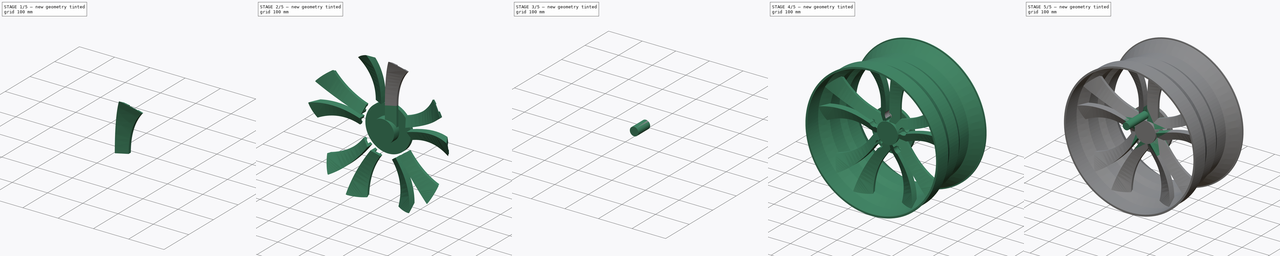
[diagram: build sequence overview — one tinted view per stage of 5, left to right]
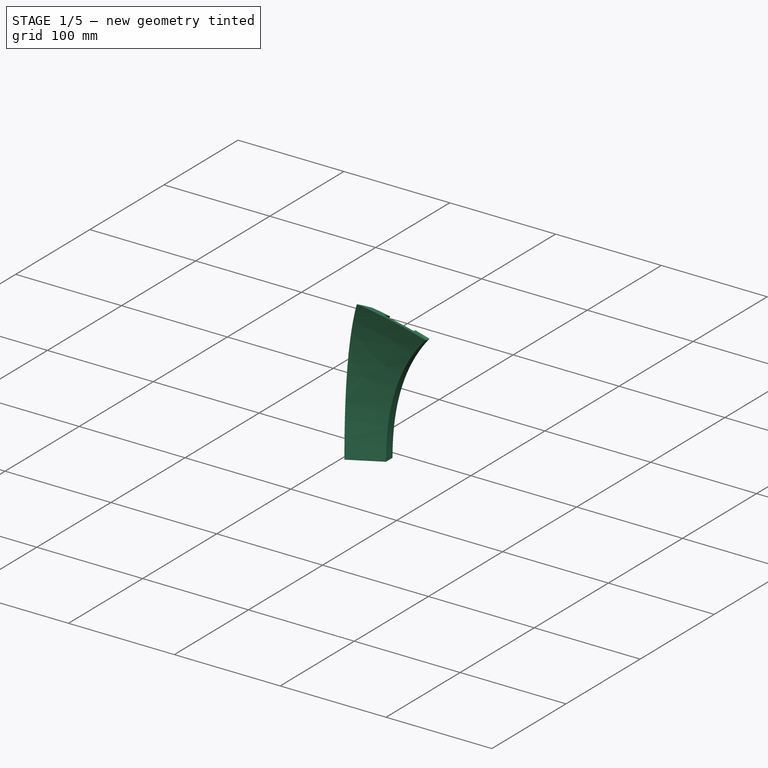
[diagram: stage 1 of 5 — iso view after this stage's code; geometry added in this stage tinted green]
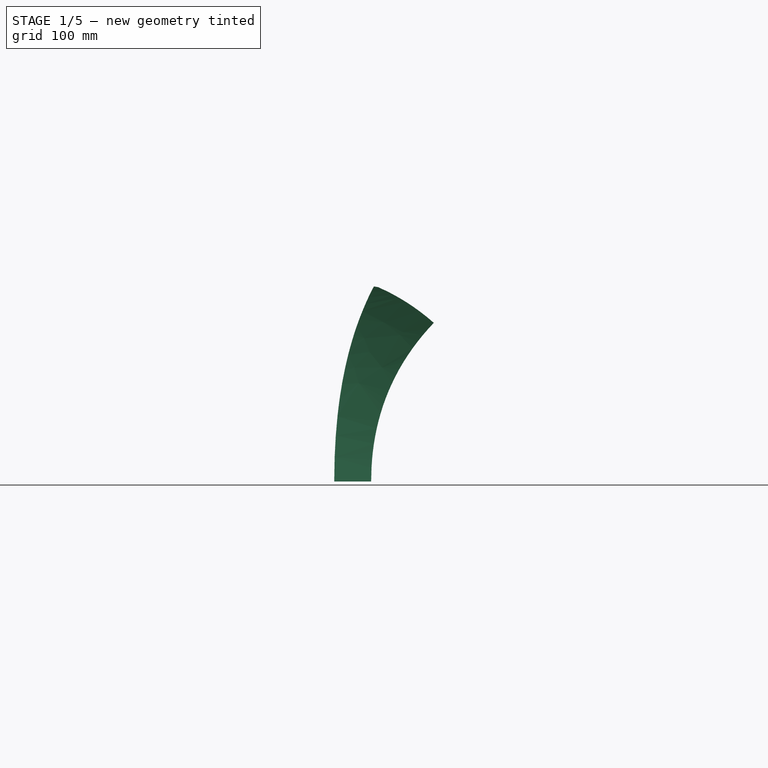
[diagram: stage 1 of 5 — front view after this stage's code; geometry added in this stage tinted green]
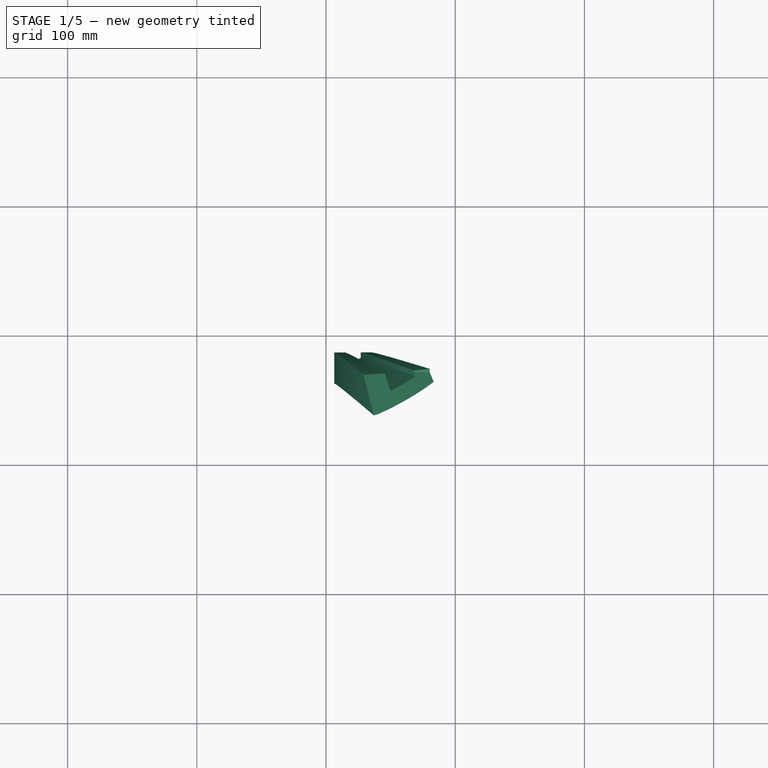
[diagram: stage 1 of 5 — top view after this stage's code; geometry added in this stage tinted green]
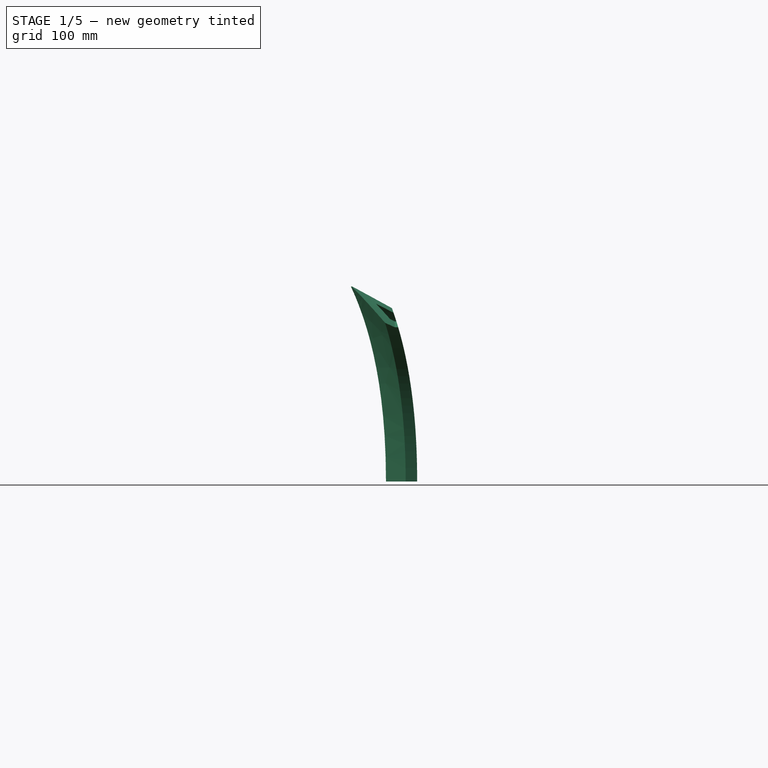
[diagram: stage 1 of 5 — right view after this stage's code; geometry added in this stage tinted green]
FCSTD DOCUMENT  (FreeCAD 0.19R21938 (Git))
Label: Wheel
License: All rights reserved
LicenseURL: http://en.wikipedia.org/wiki/All_rights_reserved
objects: Sketcher::SketchObject×16, Part::FeaturePython×7, Part::Feature×5, Part::Extrusion×4, Part::Revolution×3, PartDesign::Plane×3, Part::Cut×3, Part::MultiFuse×3, PartDesign::Body×2, Part::Mirroring×2, Part::Chamfer×2, PartDesign::Revolution×1, PartDesign::Pad×1, PartDesign::Mirrored×1, PartDesign::PolarPattern×1, PartDesign::MultiTransform×1
note: 51 computed .brp shape members not serialized (recipe doc carries the construction recipe); baked Part::Feature solids carry a one-line shape summary decoded from their .brp

FEATURE [Sketcher::SketchObject] Sketch
  sketch-geometry (6):
    g0: LineSegment StartX=0 StartY=0 StartZ=0 EndX=76.2 EndY=0 EndZ=0
    g1: LineSegment StartX=76.2 StartY=0 StartZ=0 EndX=76.2 EndY=-12.7 EndZ=0
    g2: LineSegment StartX=76.2 StartY=-12.7 StartZ=0 EndX=38.1 EndY=-12.7 EndZ=0
    g3: LineSegment StartX=38.1 StartY=-12.7 StartZ=0 EndX=38.1 EndY=-38.1 EndZ=0
    g4: LineSegment StartX=38.1 StartY=-38.1 StartZ=0 EndX=0 EndY=-38.1 EndZ=0
    g5: LineSegment StartX=0 StartY=-38.1 StartZ=0 EndX=0 EndY=0 EndZ=0
  constraints (17):
    c: PointOnObject(g0,g-1)
    c: Coincident(g0,g1)
    c: Vertical(g1)
    c: Coincident(g1,g2)
    c: Horizontal(g2)
    c: Coincident(g2,g3)
    c: Vertical(g3)
    c: Coincident(g3,g4)
    c: PointOnObject(g4,g-2)
    c: Horizontal(g4)
    c: Coincident(g4,g5)
    c: Coincident(g5,g-1)
    c: Coincident(g0,g5)
    c: DistanceY(g3,g3) = 25.4
    c: DistanceX(g4,g4) = 38.1
    c: DistanceY(g1,g1) = 12.7
    c: DistanceX(g0,g0) = 76.2
FEATURE [Part::Revolution] Revolve
  Angle = 360
  Axis = (0,1,0)
  Base = (0,0,0)
  FaceMakerClass = Part::FaceMakerBullseye
  Solid = true
  Source = -> Sketch
  Symmetric = false
FEATURE [Sketcher::SketchObject] Sketch001
  ExternalGeometry = -> [Revolve]
  sketch-geometry (4):
    g0: LineSegment StartX=6.35 StartY=-12.7 StartZ=0 EndX=34.925 EndY=-12.7 EndZ=0
    g1: LineSegment StartX=34.925 StartY=-12.7 StartZ=0 EndX=34.925 EndY=-21.59 EndZ=0
    g2: LineSegment StartX=34.925 StartY=-21.59 StartZ=0 EndX=6.35 EndY=-36.83 EndZ=0
    g3: LineSegment StartX=6.35 StartY=-36.83 StartZ=0 EndX=6.35 EndY=-12.7 EndZ=0
  constraints (12):
    c: Horizontal(g0)
    c: Coincident(g0,g1)
    c: Vertical(g1)
    c: Coincident(g1,g2)
    c: Coincident(g2,g3)
    c: Coincident(g3,g0)
    c: Vertical(g3)
    c: DistanceX(g-1,g0) = 6.35
    c: DistanceX(g0,g0) = 28.575
    c: Horizontal(g-3,g0)
    c: DistanceY(g1,g1) = 8.89
    c: DistanceY(g3,g3) = 24.13
FEATURE [Part::Extrusion] Extrude
  Base = -> Sketch001
  Dir = (0,0,1)
  DirMode = 2
  FaceMakerClass = Part::FaceMakerBullseye
  LengthFwd = 81
  LengthRev = 0
  Solid = true
  Symmetric = false
FEATURE [Sketcher::SketchObject] Sketch002
  Placement = pos=(0,0,254) rot=(0,0,1;0rad)
  sketch-geometry (4):
    g0: LineSegment StartX=50.8 StartY=-50.8 StartZ=0 EndX=152.4 EndY=-50.8 EndZ=0
    g1: LineSegment StartX=152.4 StartY=-50.8 StartZ=0 EndX=152.4 EndY=-63.5 EndZ=0
    g2: LineSegment StartX=152.4 StartY=-63.5 StartZ=0 EndX=50.8 EndY=-76.2 EndZ=0
    g3: LineSegment StartX=50.8 StartY=-76.2 StartZ=0 EndX=50.8 EndY=-50.8 EndZ=0
  constraints (12):
    c: Horizontal(g0)
    c: Coincident(g0,g1)
    c: Vertical(g1)
    c: Coincident(g1,g2)
    c: Coincident(g2,g3)
    c: Coincident(g3,g0)
    c: Vertical(g3)
    c: DistanceX(g0,g0) = 101.6
    c: DistanceY(g1,g1) = 12.7
    c: DistanceY(g3,g3) = 25.4
    c: DistanceX(g-1,g0) = 50.8
    c: DistanceY(g0,g-1) = 50.8
FEATURE [Sketcher::SketchObject] Sketch003
  ExternalGeometry = -> [Extrude]
  MapMode = 5
  Placement = pos=(0,-12.7,0) rot=(0,0.707107,0.707107;3.14159rad)
  Support = -> [Extrude]
  sketch-geometry (2):
    g0: LineSegment StartX=-34.925 StartY=81 StartZ=0 EndX=-34.925 EndY=193 EndZ=0
    g1: LineSegment StartX=-6.35 StartY=81 StartZ=0 EndX=-6.35 EndY=193 EndZ=0
  constraints (6):
    c: Coincident(g0,g-3)
    c: Vertical(g0)
    c: Coincident(g1,g-3)
    c: Vertical(g1)
    c: Equal(g0,g1)
    c: DistanceY(g0,g0) = 112
FEATURE [Sketcher::SketchObject] Sketch004
  ExternalGeometry = -> [Extrude,Sketch003]
  MapMode = 5
  Placement = pos=(6.35,0,0) rot=(0.57735,-0.57735,-0.57735;2.0944rad)
  Support = -> [Extrude]
  sketch-geometry (1):
    g0: LineSegment StartX=36.83 StartY=81 StartZ=0 EndX=36.83 EndY=193 EndZ=0
  constraints (3):
    c: Coincident(g0,g-3)
    c: Vertical(g0)
    c: Equal(g0,g-4)
FEATURE [PartDesign::Plane] DatumPlane
  Length = 247.861
  MapMode = 13
  Placement = pos=(21.1667,-25.4,176) rot=(0.253062,0.684091,0.684091;2.64588rad)
  ResizeMode = 0
  Support = -> [Sketch002,Sketch003]
  Width = 326.309
FEATURE [Sketcher::SketchObject] Sketch005
  ExternalGeometry = -> [Sketch003,Sketch002]
  MapMode = 5
  Placement = pos=(21.1667,-25.4,176) rot=(0.253062,0.684091,0.684091;2.64588rad)
  Support = -> [DatumPlane]
  sketch-geometry (6):
    g0: Circle [constr] CenterX=19.5147 CenterY=-95 CenterZ=0 NormalX=0 NormalY=0 NormalZ=1 AngleXU=0 Radius=20
    g1: Circle [constr] CenterX=19.557 CenterY=16.2476 CenterZ=0 NormalX=0 NormalY=0 NormalZ=1 AngleXU=0 Radius=20
    g2: Circle [constr] CenterX=-38.9699 CenterY=77.9796 CenterZ=0 NormalX=0 NormalY=0 NormalZ=1 AngleXU=0 Radius=20
    g3: BSplineCurve PolesCount=3 KnotsCount=2 Degree=2 IsPeriodic=0
    g4: GeomPoint [constr] X=19.5147 Y=-95 Z=0
    g5: GeomPoint [constr] X=-38.9699 Y=77.9796 Z=0
  constraints (9):
    c: Coincident(g3,g-3)
    c: Radius(g0) = 20
    c: Equal(g0,g1)
    c: Equal(g0,g2)
    c: InternalAlignment(g0,g3)
    c: InternalAlignment(g1,g3)
    c: InternalAlignment(g2,g3)
    c: InternalAlignment(g4,g3)
    c: InternalAlignment(g5,g3)
FEATURE [PartDesign::Plane] DatumPlane001
  Length = 247.131
  MapMode = 13
  Placement = pos=(21.1667,-49.9533,176) rot=(0.258976,0.682983,0.682983;2.63478rad)
  ResizeMode = 0
  Support = -> [Sketch004,Sketch002]
  Width = 326.232
FEATURE [Sketcher::SketchObject] Sketch006
  ExternalGeometry = -> [Sketch004,Sketch002]
  MapMode = 5
  Placement = pos=(21.1667,-49.9533,176) rot=(0.258976,0.682983,0.682983;2.63478rad)
  Support = -> [DatumPlane001]
  sketch-geometry (6):
    g0: Circle [constr] CenterX=19.7928 CenterY=-95 CenterZ=0 NormalX=0 NormalY=0 NormalZ=1 AngleXU=0 Radius=20
    g1: Circle [constr] CenterX=19.7928 CenterY=17 CenterZ=0 NormalX=0 NormalY=0 NormalZ=1 AngleXU=0 Radius=20
    g2: Circle [constr] CenterX=-39.5856 CenterY=78 CenterZ=0 NormalX=0 NormalY=0 NormalZ=1 AngleXU=0 Radius=20
    g3: BSplineCurve PolesCount=3 KnotsCount=2 Degree=2 IsPeriodic=0
    g4: GeomPoint [constr] X=19.7928 Y=-95 Z=0
    g5: GeomPoint [constr] X=-39.5856 Y=78 Z=0
  constraints (11):
    c: Coincident(g3,g-3)
    c: Radius(g0) = 20
    c: Equal(g0,g1)
    c: Coincident(g1,g-4)
    c: Equal(g0,g2)
    c: Coincident(g3,g-5)
    c: InternalAlignment(g0,g3)
    c: InternalAlignment(g1,g3)
    c: InternalAlignment(g2,g3)
    c: InternalAlignment(g4,g3)
    c: InternalAlignment(g5,g3)
FEATURE [PartDesign::Plane] DatumPlane002
  Length = 247.208
  MapMode = 13
  Placement = pos=(74.0833,-25.4,176) rot=(0.111107,0.702729,0.702729;2.92029rad)
  ResizeMode = 0
  Support = -> [Sketch003,Sketch002]
  Width = 326.24
FEATURE [Sketcher::SketchObject] Sketch007
  ExternalGeometry = -> [Sketch003,Sketch002]
  MapMode = 5
  Placement = pos=(74.0833,-25.4,176) rot=(0.111107,0.702729,0.702729;2.92029rad)
  Support = -> [DatumPlane002]
  sketch-geometry (6):
    g0: Circle [constr] CenterX=41.1663 CenterY=-95 CenterZ=0 NormalX=0 NormalY=0 NormalZ=1 AngleXU=0 Radius=20
    g1: Circle [constr] CenterX=41.1663 CenterY=17 CenterZ=0 NormalX=0 NormalY=0 NormalZ=1 AngleXU=0 Radius=20
    g2: Circle [constr] CenterX=-82.3326 CenterY=78 CenterZ=0 NormalX=0 NormalY=0 NormalZ=1 AngleXU=0 Radius=20
    g3: BSplineCurve PolesCount=3 KnotsCount=2 Degree=2 IsPeriodic=0
    g4: GeomPoint [constr] X=41.1663 Y=-95 Z=0
    g5: GeomPoint [constr] X=-82.3326 Y=78 Z=0
  constraints (11):
    c: Coincident(g3,g-3)
    c: Radius(g0) = 20
    c: Equal(g0,g1)
    c: Coincident(g1,g-4)
    c: Equal(g0,g2)
    c: Coincident(g3,g-5)
    c: InternalAlignment(g0,g3)
    c: InternalAlignment(g1,g3)
    c: InternalAlignment(g2,g3)
    c: InternalAlignment(g4,g3)
    c: InternalAlignment(g5,g3)
FEATURE [Sketcher::SketchObject] Sketch008
  ExternalGeometry = -> [Sketch003,Sketch004,Extrude]
  MapMode = 5
  Placement = pos=(0,0,81) rot=(0,0,1;0rad)
  Support = -> [Extrude]
  sketch-geometry (9):
    g0: LineSegment StartX=6.35 StartY=-12.7 StartZ=0 EndX=14.35 EndY=-12.7 EndZ=0
    g1: LineSegment StartX=14.35 StartY=-12.7 StartZ=0 EndX=14.35 EndY=-23.4967 EndZ=0
    g2: LineSegment StartX=14.35 StartY=-23.4967 StartZ=0 EndX=26.925 EndY=-16.79 EndZ=0
    g3: LineSegment StartX=26.925 StartY=-16.79 StartZ=0 EndX=26.925 EndY=-12.7 EndZ=0
    g4: LineSegment StartX=26.925 StartY=-12.7 StartZ=0 EndX=34.925 EndY=-12.7 EndZ=0
    g5: LineSegment StartX=34.925 StartY=-12.7 StartZ=0 EndX=34.925 EndY=-21.59 EndZ=0
    g6: LineSegment StartX=34.925 StartY=-21.59 StartZ=0 EndX=6.35 EndY=-36.83 EndZ=0
    g7: LineSegment StartX=6.35 StartY=-36.83 StartZ=0 EndX=6.35 EndY=-12.7 EndZ=0
    g8: LineSegment [constr] StartX=14.35 StartY=-23.4967 StartZ=0 EndX=18.1147 EndY=-30.5555 EndZ=0
  constraints (23):
    c: Coincident(g0,g-4)
    c: Horizontal(g0)
    c: Coincident(g0,g1)
    c: Vertical(g1)
    c: Coincident(g1,g2)
    c: Coincident(g2,g3)
    c: Vertical(g3)
    c: Coincident(g3,g4)
    c: Coincident(g4,g-3)
    c: Horizontal(g4)
    c: Coincident(g4,g5)
    c: Coincident(g5,g-6)
    c: Coincident(g5,g6)
    c: Coincident(g6,g-5)
    c: Coincident(g6,g7)
    c: Coincident(g7,g0)
    c: DistanceX(g0,g0) = 8
    c: Parallel(g2,g6)
    c: Coincident(g8,g1)
    c: PointOnObject(g8,g6)
    c: Equal(g0,g4)
    c: Equal(g0,g8)
    c: Perpendicular(g6,g8)
FEATURE [PartDesign::Body] Body
  Group = -> [Sketch003,Sketch004,Sketch002,DatumPlane,Sketch005,DatumPlane001,Sketch006,DatumPlane002,Sketch007,Sketch008]
  Origin = -> Origin
FEATURE [Part::FeaturePython] CurvedArray  # WARN: FeaturePython — macro-defined, semantics opaque (R4)
  Axis = (0,0,1)
  Base = -> Sketch008
  Distribution = 0
  DistributionReverse = false
  Hullcurves = -> [Sketch007,Sketch006,Sketch005]
  Items = 10
  OffsetEnd = 0
  OffsetStart = 0
  Solid = true
  Surface = false
  Twist = 0
FEATURE [Sketcher::SketchObject] Sketch009
  Placement = pos=(0,0,0) rot=(0.57735,0.57735,0.57735;2.0944rad)
  sketch-geometry (12):
    g0: LineSegment [constr] StartX=-120 StartY=241.3 StartZ=0 EndX=134 EndY=241.3 EndZ=0
    g1: LineSegment StartX=-120 StartY=241.3 StartZ=0 EndX=-120 EndY=234.95 EndZ=0
    g2: LineSegment StartX=-120 StartY=234.95 StartZ=0 EndX=-63 EndY=234.95 EndZ=0
    g3: LineSegment StartX=-63 StartY=234.95 StartZ=0 EndX=-30 EndY=215.897 EndZ=0
    g4: LineSegment StartX=-30 StartY=215.897 StartZ=0 EndX=20 EndY=215.897 EndZ=0
    g5: LineSegment StartX=20 StartY=215.897 StartZ=0 EndX=40 EndY=204.35 EndZ=0
    g6: LineSegment StartX=40 StartY=204.35 StartZ=0 EndX=90 EndY=204.35 EndZ=0
    g7: LineSegment StartX=90 StartY=204.35 StartZ=0 EndX=134 EndY=234.95 EndZ=0
    g8: LineSegment StartX=134 StartY=234.95 StartZ=0 EndX=134 EndY=241.3 EndZ=0
    g9: LineSegment StartX=-120 StartY=241.3 StartZ=0 EndX=-120 EndY=441.3 EndZ=0
    g10: LineSegment StartX=-120 StartY=441.3 StartZ=0 EndX=134 EndY=441.3 EndZ=0
    g11: LineSegment StartX=134 StartY=441.3 StartZ=0 EndX=134 EndY=241.3 EndZ=0
  constraints (35):
    c: Horizontal(g0)
    c: DistanceY(g-1,g0) = 241.3
    c: DistanceX(g0,g0) = 254
    c: DistanceX(g0,g-1) = 120
    c: Coincident(g1,g0)
    c: Vertical(g1)
    c: Coincident(g1,g2)
    c: Horizontal(g2)
    c: Coincident(g2,g3)
    c: Coincident(g3,g4)
    c: Horizontal(g4)
    c: Coincident(g4,g5)
    c: Coincident(g5,g6)
    c: Horizontal(g6)
    c: Coincident(g6,g7)
    c: Coincident(g7,g8)
    c: Vertical(g8)
    c: DistanceY(g1,g1) = 6.35
    c: Angle(g2,g3) = 2.61799
    c: DistanceX(g2,g2) = 57
    c: DistanceX(g3,g-1) = 30
    c: DistanceX(g4,g4) = 50
    c: Angle(g4,g5) = 2.61799
    c: DistanceX(g6,g6) = 50
    c: Equal(g8,g1)
    c: Coincident(g8,g0)
    c: DistanceX(g-1,g5) = 40
    c: Coincident(g1,g9)
    c: Vertical(g9)
    c: Coincident(g9,g10)
    c: Horizontal(g10)
    c: Coincident(g10,g11)
    c: Coincident(g11,g8)
    c: Vertical(g11)
    c: DistanceY(g9,g9) = 200
FEATURE [Part::Revolution] Revolve001
  Angle = 360
  Axis = (0,1,0)
  Base = (0,0,0)
  FaceMakerClass = Part::FaceMakerBullseye
  Solid = true
  Source = -> Sketch009
  Symmetric = false
FEATURE [Part::Cut] Cut
  Base = -> CurvedArray
  Tool = -> Revolve001
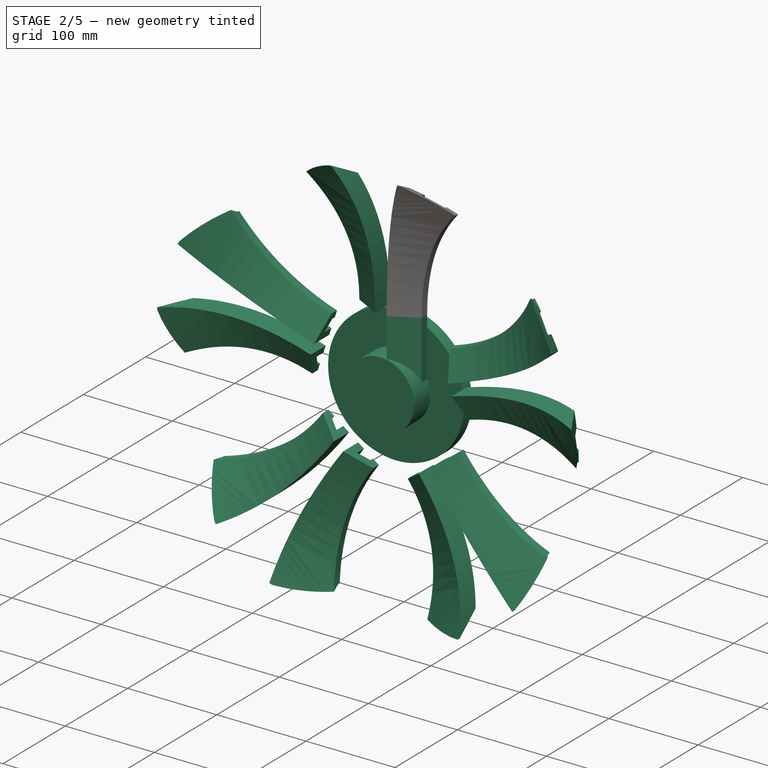
[diagram: stage 2 of 5 — iso view after this stage's code; geometry added in this stage tinted green]
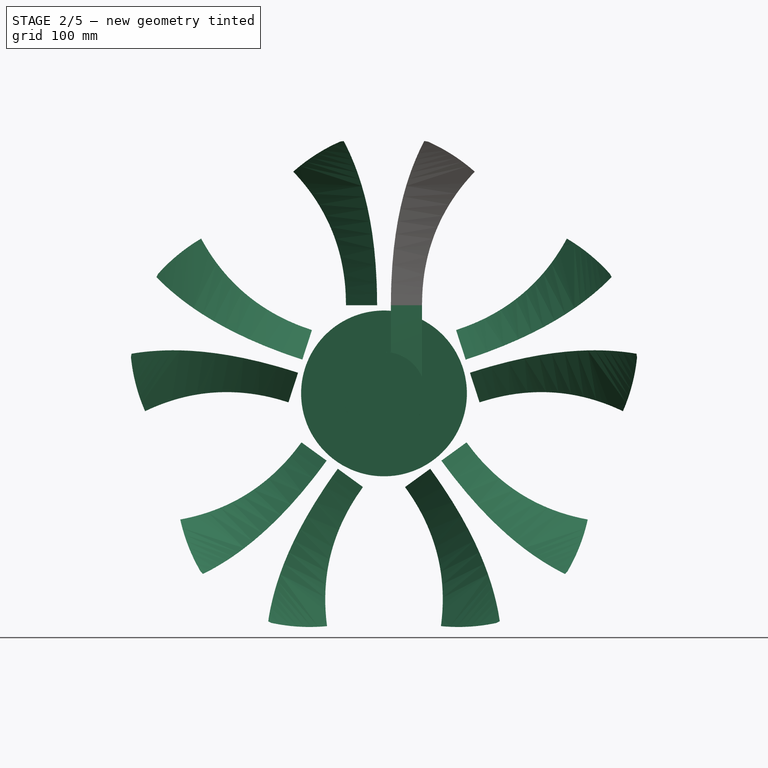
[diagram: stage 2 of 5 — front view after this stage's code; geometry added in this stage tinted green]
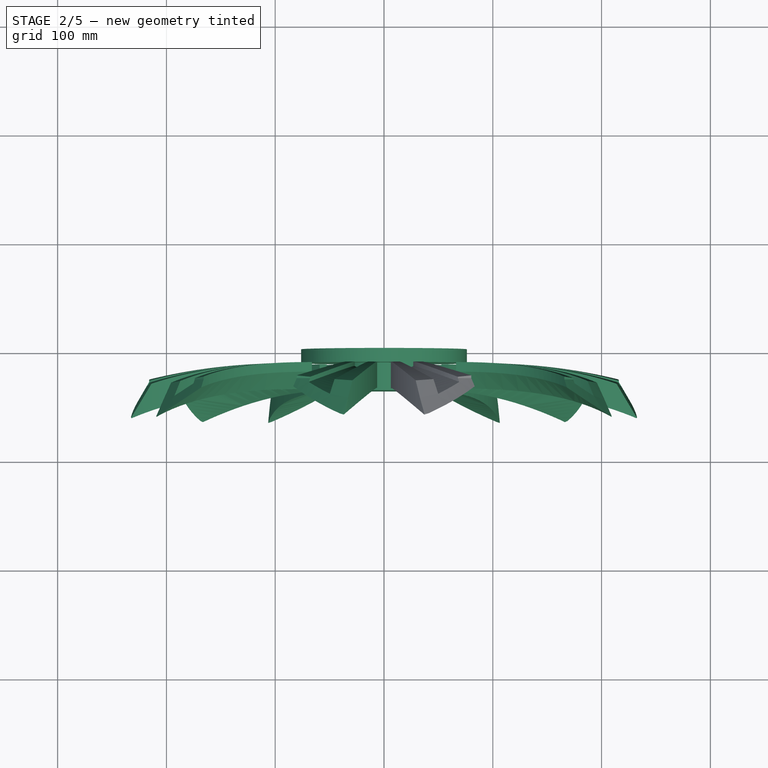
[diagram: stage 2 of 5 — top view after this stage's code; geometry added in this stage tinted green]
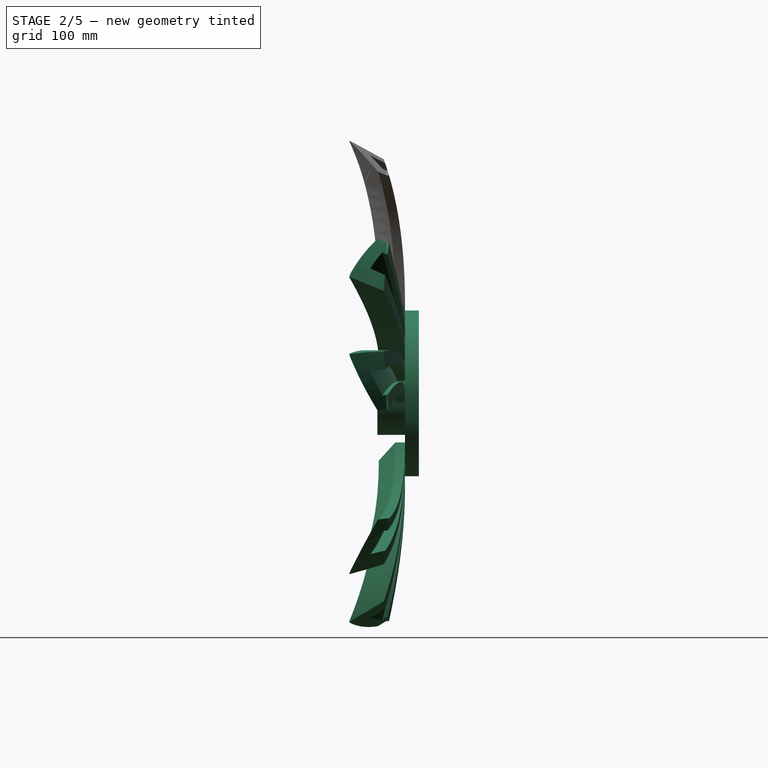
[diagram: stage 2 of 5 — right view after this stage's code; geometry added in this stage tinted green]
FEATURE [Part::Mirroring] Part__Mirroring001  label="Cut (Mirror #2)"
  Base = (0,0,0)
  Normal = (1,0,0)
  Source = -> Cut
FEATURE [Part::FeaturePython] Array002  # Draft array (typed FeaturePython)
  Angle = 360
  ArrayType = 1
  Axis = (0,1,0)
  Base = -> Cut
  Center = (0,0,0)
  Count = 5
  ExpandArray = false
  Fuse = false
  IntervalAxis = (0,0,0)
  IntervalX = (50,0,0)
  IntervalY = (0,50,0)
  IntervalZ = (0,0,50)
  NumberCircles = 3
  NumberPolar = 5
  NumberX = 2
  NumberY = 2
  NumberZ = 1
  PlacementList = 5 placements: [(0,0,0),(0,0,0),(0,0,0),(0,0,0),(0,0,0)]
  RadialDistance = 50
  ScaleList = (5) [(1,1,1),(1,1,1),(1,1,1),(1,1,1),(1,1,1)]
  Symmetry = 1
  TangentialDistance = 25
FEATURE [Part::FeaturePython] Array003  # Draft array (typed FeaturePython)
  Angle = 360
  ArrayType = 1
  Axis = (0,1,0)
  Base = -> Part__Mirroring001
  Center = (0,0,0)
  Count = 5
  ExpandArray = false
  Fuse = false
  IntervalAxis = (0,0,0)
  IntervalX = (50,0,0)
  IntervalY = (0,50,0)
  IntervalZ = (0,0,50)
  NumberCircles = 3
  NumberPolar = 5
  NumberX = 2
  NumberY = 2
  NumberZ = 1
  PlacementList = 5 placements: [(0,0,0),(0,0,0),(0,0,0),(0,0,0),(0,0,0)]
  RadialDistance = 50
  ScaleList = (5) [(1,1,1),(1,1,1),(1,1,1),(1,1,1),(1,1,1)]
  Symmetry = 1
  TangentialDistance = 25
FEATURE [Sketcher::SketchObject] Sketch012
  sketch-geometry (6):
    g0: LineSegment StartX=0 StartY=0 StartZ=0 EndX=76.2 EndY=0 EndZ=0
    g1: LineSegment StartX=76.2 StartY=0 StartZ=0 EndX=76.2 EndY=-12.7 EndZ=0
    g2: LineSegment StartX=76.2 StartY=-12.7 StartZ=0 EndX=38.1 EndY=-12.7 EndZ=0
    g3: LineSegment StartX=38.1 StartY=-12.7 StartZ=0 EndX=38.1 EndY=-38.1 EndZ=0
    g4: LineSegment StartX=38.1 StartY=-38.1 StartZ=0 EndX=0 EndY=-38.1 EndZ=0
    g5: LineSegment StartX=0 StartY=-38.1 StartZ=0 EndX=0 EndY=0 EndZ=0
  constraints (17):
    c: PointOnObject(g0,g-1)
    c: Coincident(g0,g1)
    c: Vertical(g1)
    c: Coincident(g1,g2)
    c: Horizontal(g2)
    c: Coincident(g2,g3)
    c: Vertical(g3)
    c: Coincident(g3,g4)
    c: PointOnObject(g4,g-2)
    c: Horizontal(g4)
    c: Coincident(g4,g5)
    c: Coincident(g5,g-1)
    c: Coincident(g0,g5)
    c: DistanceY(g3,g3) = 25.4
    c: DistanceX(g4,g4) = 38.1
    c: DistanceY(g1,g1) = 12.7
    c: DistanceX(g0,g0) = 76.2
FEATURE [PartDesign::Revolution] Revolution
  Angle = 360
  Axis = (0,1,0)
  Base = (0,0,0)
  Profile = -> Sketch012
  ReferenceAxis = -> Sketch012 [V_Axis]
  Reversed = true
FEATURE [Sketcher::SketchObject] Sketch013
  ExternalGeometry = -> [Revolve]
  sketch-geometry (4):
    g0: LineSegment StartX=6.35 StartY=-12.7 StartZ=0 EndX=34.925 EndY=-12.7 EndZ=0
    g1: LineSegment StartX=34.925 StartY=-12.7 StartZ=0 EndX=34.925 EndY=-21.59 EndZ=0
    g2: LineSegment StartX=34.925 StartY=-21.59 StartZ=0 EndX=6.35 EndY=-36.83 EndZ=0
    g3: LineSegment StartX=6.35 StartY=-36.83 StartZ=0 EndX=6.35 EndY=-12.7 EndZ=0
  constraints (12):
    c: Horizontal(g0)
    c: Coincident(g0,g1)
    c: Vertical(g1)
    c: Coincident(g1,g2)
    c: Coincident(g2,g3)
    c: Coincident(g3,g0)
    c: Vertical(g3)
    c: DistanceX(g-1,g0) = 6.35
    c: DistanceX(g0,g0) = 28.575
    c: Horizontal(g-3,g0)
    c: DistanceY(g1,g1) = 8.89
    c: DistanceY(g3,g3) = 24.13
FEATURE [PartDesign::Pad] Pad
  BaseFeature = -> Revolution
  Length = 81
  Length2 = 100
  Profile = -> Sketch013
  Type = 0
FEATURE [PartDesign::Body] Body001  label="CenterSpoke"
  Group = -> [Sketch012,Revolution,Sketch013,Pad,MultiTransform,Mirrored001,PolarPattern]
  Origin = -> Origin001
  Tip = -> MultiTransform
FEATURE [Part::MultiFuse] Fusion
  Shapes = -> [Array002,Array003]
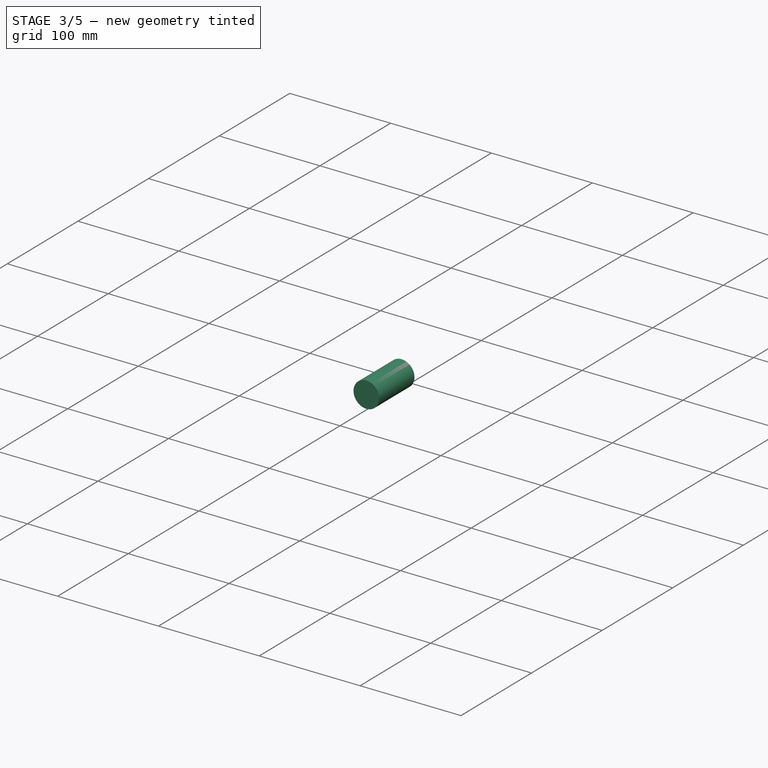
[diagram: stage 3 of 5 — iso view after this stage's code; geometry added in this stage tinted green]
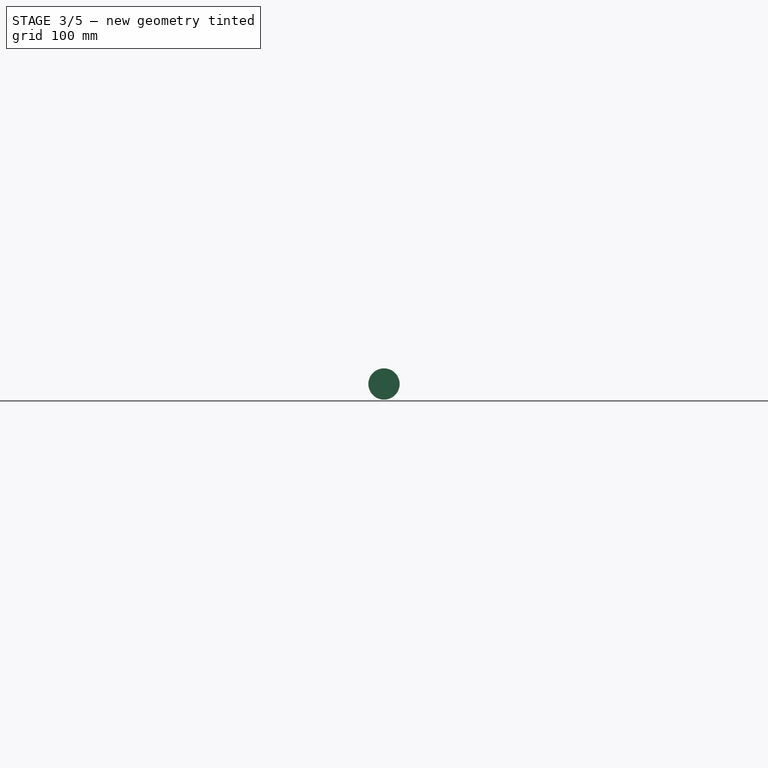
[diagram: stage 3 of 5 — front view after this stage's code; geometry added in this stage tinted green]
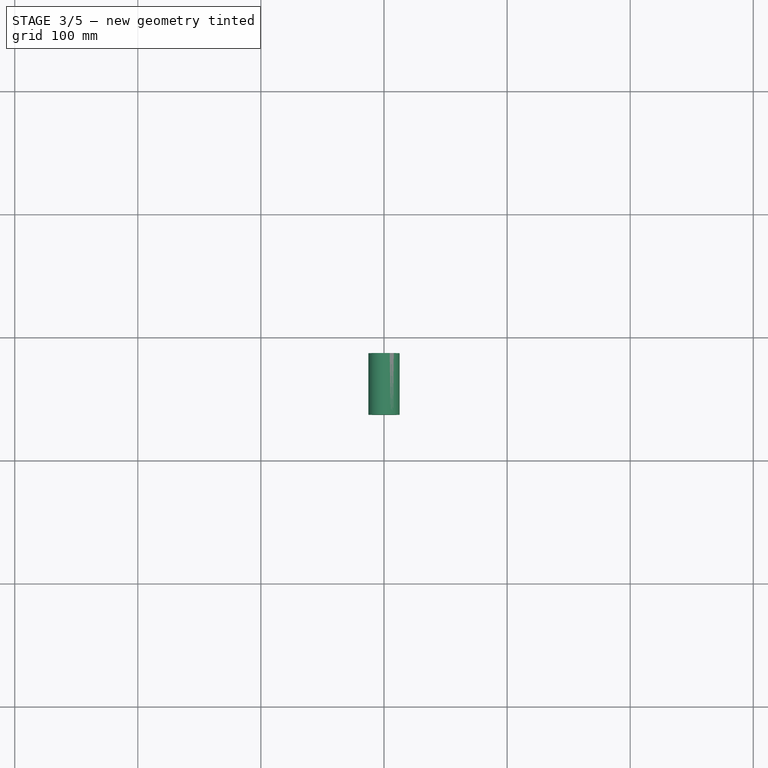
[diagram: stage 3 of 5 — top view after this stage's code; geometry added in this stage tinted green]
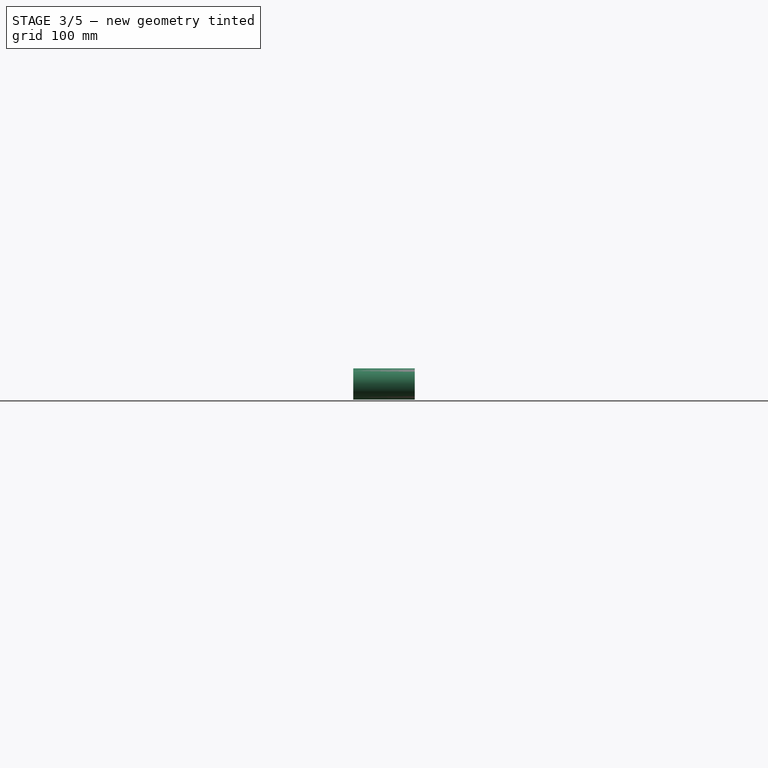
[diagram: stage 3 of 5 — right view after this stage's code; geometry added in this stage tinted green]
FEATURE [Sketcher::SketchObject] Sketch010
  ExternalGeometry = -> [Sketch009]
  Placement = pos=(0,0,0) rot=(0.57735,0.57735,0.57735;2.0944rad)
  sketch-geometry (23):
    g0: LineSegment StartX=-120 StartY=241.3 StartZ=0 EndX=-116.875 EndY=241.3 EndZ=0
    g1: LineSegment StartX=-116.875 StartY=241.3 StartZ=0 EndX=-116.875 EndY=238.175 EndZ=0
    g2: LineSegment StartX=-116.875 StartY=238.175 StartZ=0 EndX=-60.9005 EndY=238.175 EndZ=0
    g3: LineSegment StartX=-60.9005 StartY=238.175 StartZ=0 EndX=-28.9704 EndY=219.74 EndZ=0
    g4: LineSegment StartX=-28.9704 StartY=219.74 StartZ=0 EndX=21.0296 EndY=219.74 EndZ=0
    g5: LineSegment StartX=21.0296 StartY=219.74 StartZ=0 EndX=41.0296 EndY=208.193 EndZ=0
    g6: LineSegment StartX=41.0296 StartY=208.193 StartZ=0 EndX=88.7952 EndY=208.193 EndZ=0
    g7: LineSegment StartX=88.7952 StartY=208.193 StartZ=0 EndX=130.875 EndY=237.457 EndZ=0
    g8: LineSegment StartX=130.875 StartY=237.457 StartZ=0 EndX=130.875 EndY=241.3 EndZ=0
    g9: LineSegment StartX=130.875 StartY=241.3 StartZ=0 EndX=134 EndY=241.3 EndZ=0
    g10: LineSegment [constr] StartX=130.875 StartY=237.457 StartZ=0 EndX=133.069 EndY=234.303 EndZ=0
    g11: LineSegment [constr] StartX=88.7952 StartY=208.193 StartZ=0 EndX=88.7952 EndY=204.35 EndZ=0
    g12: LineSegment [constr] StartX=41.0296 StartY=208.193 StartZ=0 EndX=39.1083 EndY=204.865 EndZ=0
    g13: LineSegment [constr] StartX=-28.9704 StartY=219.74 StartZ=0 EndX=-28.9704 EndY=215.897 EndZ=0
    g14: LineSegment [constr] StartX=-63 StartY=234.95 StartZ=0 EndX=-61.0787 EndY=238.278 EndZ=0
    g15: LineSegment StartX=-120 StartY=241.3 StartZ=0 EndX=-120 EndY=234.95 EndZ=0
    g16: LineSegment StartX=-63 StartY=234.95 StartZ=0 EndX=-120 EndY=234.95 EndZ=0
    g17: LineSegment StartX=-63 StartY=234.95 StartZ=0 EndX=-30 EndY=215.897 EndZ=0
    g18: LineSegment StartX=-30 StartY=215.897 StartZ=0 EndX=20 EndY=215.897 EndZ=0
    g19: LineSegment StartX=20 StartY=215.897 StartZ=0 EndX=40 EndY=204.35 EndZ=0
    g20: LineSegment StartX=40 StartY=204.35 StartZ=0 EndX=90 EndY=204.35 EndZ=0
    g21: LineSegment StartX=90 StartY=204.35 StartZ=0 EndX=134 EndY=234.95 EndZ=0
    g22: LineSegment StartX=134 StartY=234.95 StartZ=0 EndX=134 EndY=241.3 EndZ=0
  constraints (60):
    c: Coincident(g-10,g0)
    c: Horizontal(g0)
    c: Coincident(g0,g1)
    c: Vertical(g1)
    c: Coincident(g1,g2)
    c: Horizontal(g2)
    c: Coincident(g2,g3)
    c: Coincident(g3,g4)
    c: Horizontal(g4)
    c: Coincident(g4,g5)
    c: Coincident(g5,g6)
    c: Horizontal(g6)
    c: Coincident(g6,g7)
    c: Coincident(g7,g8)
    c: Coincident(g8,g9)
    c: Coincident(g9,g-3)
    c: DistanceX(g0,g0) = 3.125
    c: Equal(g1,g0)
    c: Parallel(g-8,g3)
    c: Parallel(g-6,g5)
    c: Parallel(g-4,g7)
    c: Vertical(g8)
    c: Horizontal(g9)
    c: Coincident(g10,g7)
    c: PointOnObject(g10,g-4)
    c: Perpendicular(g-4,g10)
    c: Equal(g9,g0)
    c: Equal(g8,g10)
    c: PointOnObject(g11,g-5)
    c: Vertical(g11)
    c: Equal(g10,g11)
    c: PointOnObject(g12,g-6)
    c: Perpendicular(g-6,g12)
    c: Equal(g12,g11)
    c: PointOnObject(g13,g-7)
    c: Vertical(g13)
    c: Equal(g13,g12)
    c: Coincident(g14,g-9)
    c: PointOnObject(g14,g3)
    c: Perpendicular(g3,g14)
    c: Equal(g14,g13)
    c: Coincident(g6,g11)
    c: Coincident(g13,g3)
    c: Coincident(g12,g5)
    c: Coincident(g15,g0)
    c: Coincident(g15,g-10)
    c: Coincident(g16,g14)
    c: Coincident(g16,g15)
    c: Coincident(g17,g16)
    c: Coincident(g17,g-8)
    c: Coincident(g18,g17)
    c: Coincident(g18,g-7)
    c: Coincident(g19,g18)
    c: Coincident(g19,g-6)
    c: Coincident(g20,g19)
    c: Coincident(g20,g-5)
    c: Coincident(g21,g20)
    c: Coincident(g21,g-4)
    c: Coincident(g22,g21)
    c: Coincident(g22,g9)
FEATURE [Part::Revolution] Revolve002
  Angle = 360
  Axis = (0,1,0)
  Base = (0,0,0)
  FaceMakerClass = Part::FaceMakerBullseye
  Solid = true
  Source = -> Sketch010
  Symmetric = false
FEATURE [PartDesign::Mirrored] Mirrored001
  MirrorPlane = -> Sketch013 [V_Axis]
FEATURE [PartDesign::PolarPattern] PolarPattern
  Angle = 360
  Axis = -> Sketch013 [V_Axis]
  Occurrences = 5
FEATURE [PartDesign::MultiTransform] MultiTransform
  BaseFeature = -> Pad
  Originals = -> [Pad]
  Transformations = -> [Mirrored001,PolarPattern]
FEATURE [Part::MultiFuse] Fusion001
  Shapes = -> [Body001,Fusion]
FEATURE [Part::MultiFuse] Fusion002
  Shapes = -> [Revolve002,Fusion001]
FEATURE [Sketcher::SketchObject] Sketch014
  MapMode = 5
  Placement = pos=(0,-12.7,0) rot=(1,0,0;1.5708rad)
  Support = -> [Fusion002]
  sketch-geometry (2):
    g0: Circle [constr] CenterX=0 CenterY=0 CenterZ=0 NormalX=0 NormalY=0 NormalZ=1 AngleXU=0 Radius=57.15
    g1: Circle CenterX=0 CenterY=57.15 CenterZ=0 NormalX=0 NormalY=0 NormalZ=1 AngleXU=0 Radius=12.7
  constraints (5):
    c: Coincident(g0,g-1)
    c: Radius(g0) = 57.15
    c: PointOnObject(g1,g-2)
    c: Radius(g1) = 12.7
    c: PointOnObject(g1,g0)
FEATURE [Part::Extrusion] Extrude002
  Base = -> Sketch014
  Dir = (0,-1,2e-16)
  DirMode = 2
  FaceMakerClass = Part::FaceMakerBullseye
  LengthFwd = 50
  LengthRev = 0
  Solid = true
  Symmetric = false
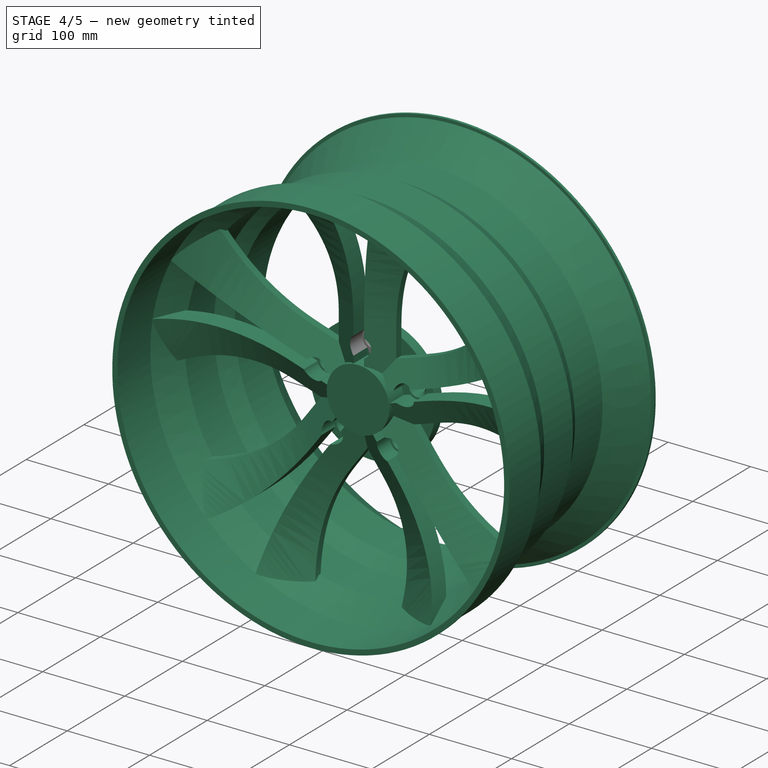
[diagram: stage 4 of 5 — iso view after this stage's code; geometry added in this stage tinted green]
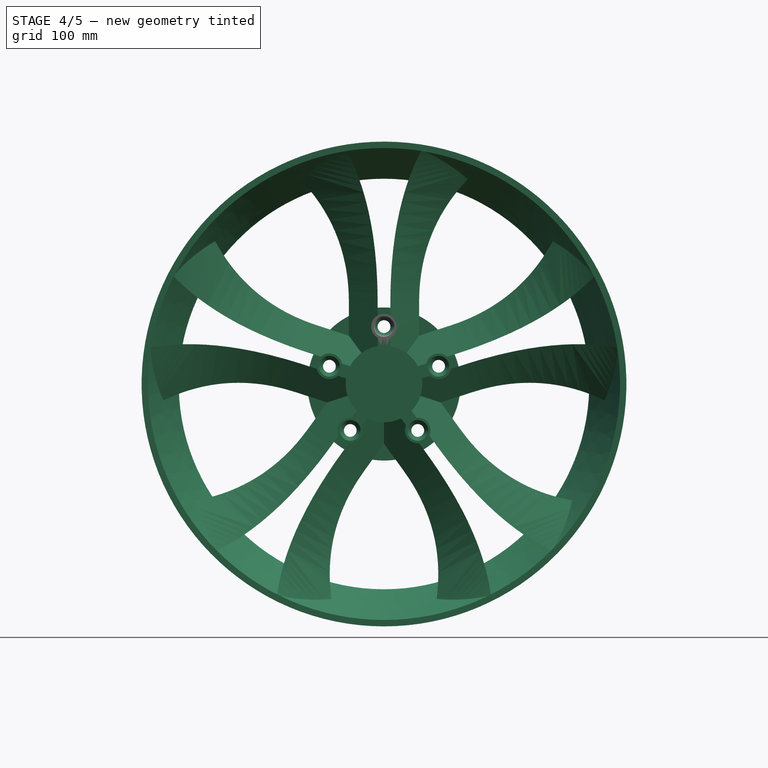
[diagram: stage 4 of 5 — front view after this stage's code; geometry added in this stage tinted green]
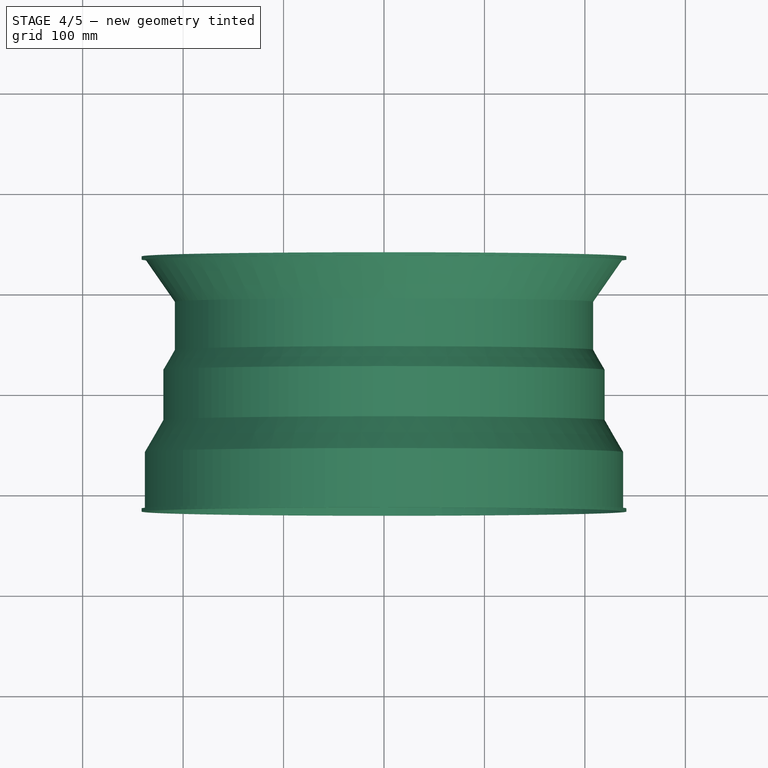
[diagram: stage 4 of 5 — top view after this stage's code; geometry added in this stage tinted green]
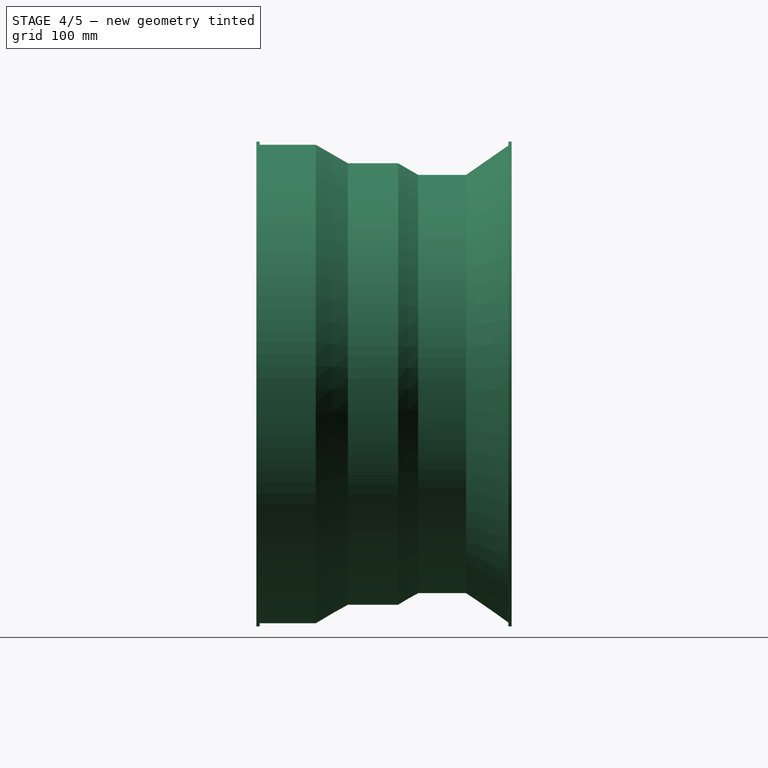
[diagram: stage 4 of 5 — right view after this stage's code; geometry added in this stage tinted green]
FEATURE [Part::FeaturePython] Array005  # Draft array (typed FeaturePython)
  Angle = 360
  ArrayType = 1
  Axis = (0,1,0)
  Base = -> Extrude002
  Center = (0,0,0)
  Count = 5
  ExpandArray = false
  Fuse = false
  IntervalAxis = (0,0,0)
  IntervalX = (50,0,0)
  IntervalY = (0,50,0)
  IntervalZ = (0,0,50)
  NumberCircles = 3
  NumberPolar = 5
  NumberX = 2
  NumberY = 2
  NumberZ = 1
  PlacementList = 5 placements: [(0,0,0),(0,0,0),(0,0,0),(0,0,0),(0,0,0)]
  RadialDistance = 50
  ScaleList = (5) [(1,1,1),(1,1,1),(1,1,1),(1,1,1),(1,1,1)]
  Symmetry = 1
  TangentialDistance = 25
FEATURE [Part::Cut] Cut001
  Base = -> Fusion002
  Tool = -> Array005
FEATURE [Sketcher::SketchObject] Sketch015
  ExternalGeometry = -> [Cut001]
  MapMode = 5
  Placement = pos=(0,-12.7,0) rot=(1,0,0;1.5708rad)
  Support = -> [Cut001]
  sketch-geometry (1):
    g0: Circle CenterX=0 CenterY=57.15 CenterZ=0 NormalX=0 NormalY=0 NormalZ=1 AngleXU=0 Radius=6.35
  constraints (2):
    c: Coincident(g0,g-3)
    c: Radius(g0) = 6.35
FEATURE [Part::Extrusion] Extrude003
  Base = -> Sketch015
  Dir = (0,-1,2e-16)
  DirMode = 2
  FaceMakerClass = Part::FaceMakerBullseye
  LengthFwd = 50
  LengthRev = 0
  Solid = true
  Symmetric = true
FEATURE [Part::FeaturePython] Array006  # Draft array (typed FeaturePython)
  Angle = 360
  ArrayType = 1
  Axis = (0,1,0)
  Base = -> Extrude003
  Center = (0,0,0)
  Count = 5
  ExpandArray = false
  Fuse = false
  IntervalAxis = (0,0,0)
  IntervalX = (50,0,0)
  IntervalY = (0,50,0)
  IntervalZ = (0,0,50)
  NumberCircles = 3
  NumberPolar = 5
  NumberX = 2
  NumberY = 2
  NumberZ = 1
  PlacementList = 5 placements: [(0,0,0),(0,0,0),(0,0,0),(0,0,0),(0,0,0)]
  RadialDistance = 50
  ScaleList = (5) [(1,1,1),(1,1,1),(1,1,1),(1,1,1),(1,1,1)]
  Symmetry = 1
  TangentialDistance = 25
FEATURE [Part::Feature] Defeatured
  shape: bbox 557.4 x 254 x 530.1 mm, 230 faces (baked)
FEATURE [Part::Feature] Defeatured001
  shape: bbox 557.4 x 254 x 530.1 mm, 223 faces (baked)
FEATURE [Part::Feature] Defeatured002
  shape: bbox 557.4 x 254 x 530.1 mm, 216 faces (baked)
FEATURE [Part::Feature] Defeatured003
  shape: bbox 557.4 x 254 x 530.1 mm, 209 faces (baked)
FEATURE [Part::Feature] Defeatured004
  shape: bbox 557.4 x 254 x 530.1 mm, 202 faces (baked)
FEATURE [Part::Cut] Cut002
  Base = -> Defeatured004
  Tool = -> Array006
FEATURE [Part::Chamfer] Chamfer
  Base = -> Cut002
  Edges = 5 edges r=4: [Edge536,Edge537,Edge538,Edge539,Edge540]
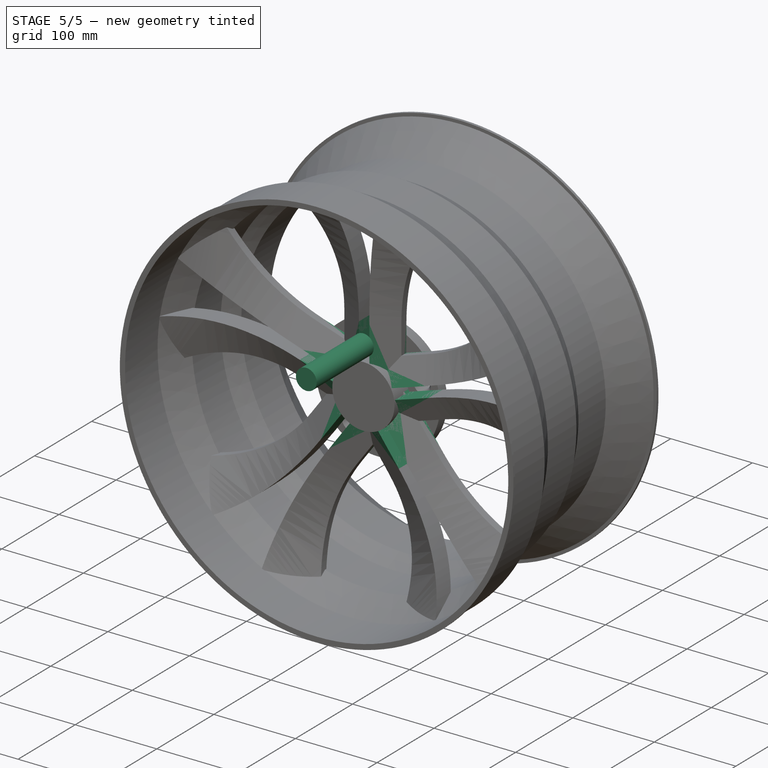
[diagram: stage 5 of 5 — iso view after this stage's code; geometry added in this stage tinted green]
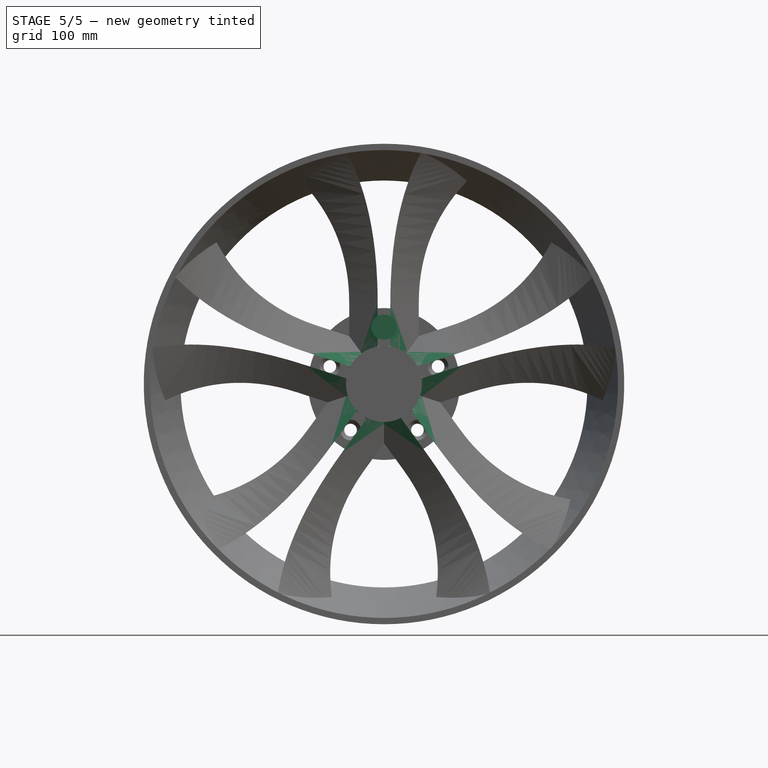
[diagram: stage 5 of 5 — front view after this stage's code; geometry added in this stage tinted green]
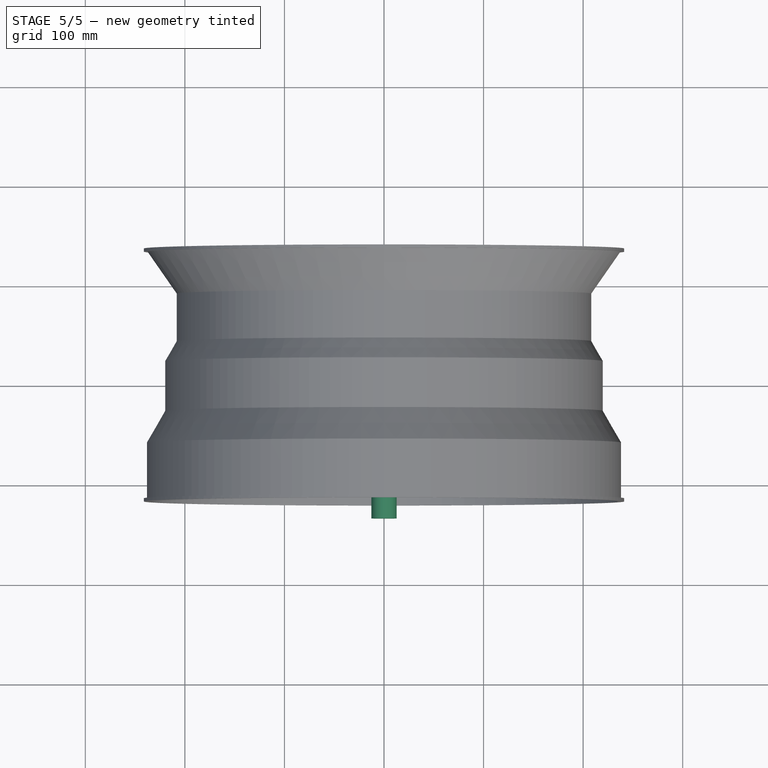
[diagram: stage 5 of 5 — top view after this stage's code; geometry added in this stage tinted green]
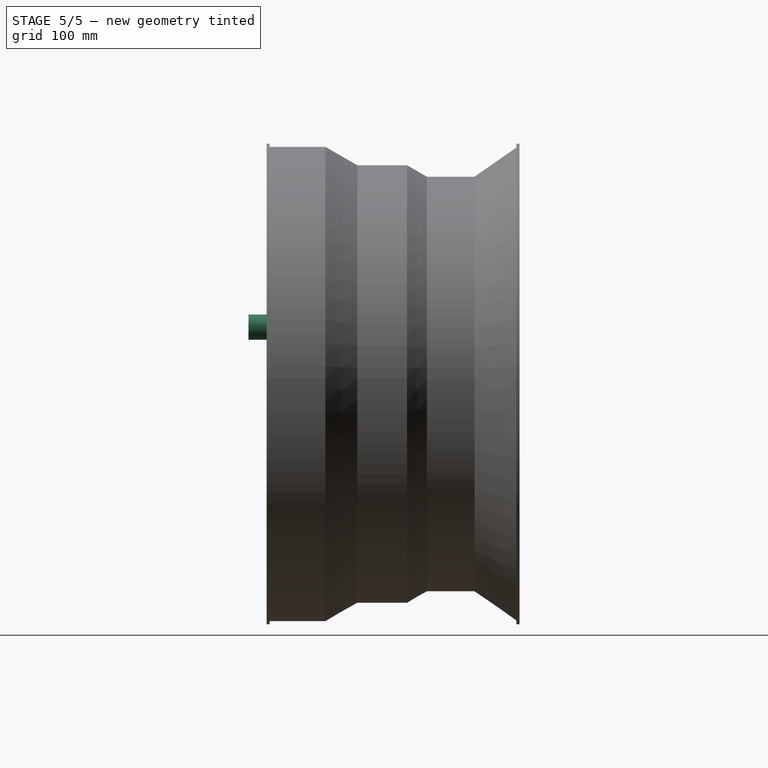
[diagram: stage 5 of 5 — right view after this stage's code; geometry added in this stage tinted green]
FEATURE [Part::Mirroring] Part__Mirroring  label="Extrude (Mirror #1)"
  Base = (0,0,0)
  Normal = (1,0,0)
  Source = -> Extrude
FEATURE [Part::FeaturePython] Array  # Draft array (typed FeaturePython)
  Angle = 360
  ArrayType = 1
  Axis = (0,1,0)
  Base = -> Extrude
  Center = (0,0,0)
  Count = 5
  ExpandArray = false
  Fuse = false
  IntervalAxis = (0,0,0)
  IntervalX = (100,0,0)
  IntervalY = (0,100,0)
  IntervalZ = (0,0,100)
  NumberCircles = 3
  NumberPolar = 5
  NumberX = 1
  NumberY = 1
  NumberZ = 1
  PlacementList = 5 placements: [(0,0,0),(0,0,0),(0,0,0),(0,0,0),(0,0,0)]
  RadialDistance = 50
  ScaleList = (5) [(1,1,1),(1,1,1),(1,1,1),(1,1,1),(1,1,1)]
  Symmetry = 1
  TangentialDistance = 25
FEATURE [Part::FeaturePython] Array001  # Draft array (typed FeaturePython)
  Angle = 360
  ArrayType = 1
  Axis = (0,1,0)
  Base = -> Part__Mirroring
  Center = (0,0,0)
  Count = 5
  ExpandArray = false
  Fuse = false
  IntervalAxis = (0,0,0)
  IntervalX = (50,0,0)
  IntervalY = (0,50,0)
  IntervalZ = (0,0,50)
  NumberCircles = 3
  NumberPolar = 5
  NumberX = 2
  NumberY = 2
  NumberZ = 1
  PlacementList = 5 placements: [(0,0,0),(0,0,0),(0,0,0),(0,0,0),(0,0,0)]
  RadialDistance = 50
  ScaleList = (5) [(1,1,1),(1,1,1),(1,1,1),(1,1,1),(1,1,1)]
  Symmetry = 1
  TangentialDistance = 25
FEATURE [Sketcher::SketchObject] Sketch011
  MapMode = 5
  Placement = pos=(0,-38.1,0) rot=(1,0,0;1.5708rad)
  Support = -> [Revolve]
  sketch-geometry (2):
    g0: Circle [constr] CenterX=0 CenterY=0 CenterZ=0 NormalX=0 NormalY=0 NormalZ=1 AngleXU=0 Radius=57.15
    g1: Circle CenterX=0 CenterY=57.15 CenterZ=0 NormalX=0 NormalY=0 NormalZ=1 AngleXU=0 Radius=12.7
  constraints (5):
    c: Coincident(g0,g-1)
    c: Radius(g0) = 57.15
    c: PointOnObject(g1,g-2)
    c: Radius(g1) = 12.7
    c: PointOnObject(g1,g0)
FEATURE [Part::Extrusion] Extrude001
  Base = -> Sketch011
  Dir = (0,-1,2e-16)
  DirMode = 2
  FaceMakerClass = Part::FaceMakerBullseye
  LengthFwd = 100
  LengthRev = 0
  Solid = true
  Symmetric = false
FEATURE [Part::Chamfer] Chamfer001
  Base = -> Chamfer
  Edges = 10 edges r=4: [Edge12,Edge49,Edge90,Edge108,Edge110,Edge125,Edge131,Edge146,Edge152,Edge167]
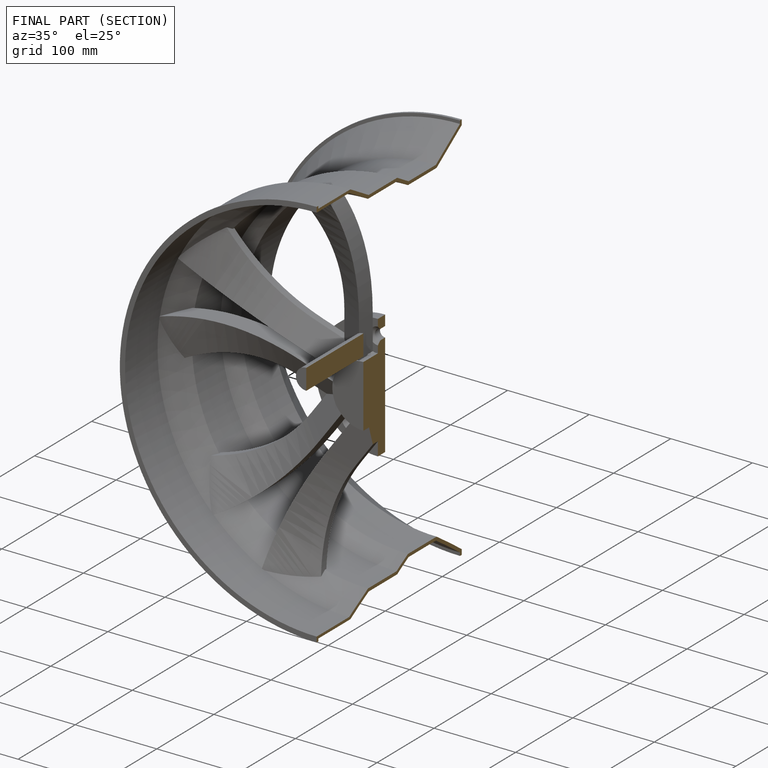
[diagram: finished part — half-section view (interior)]
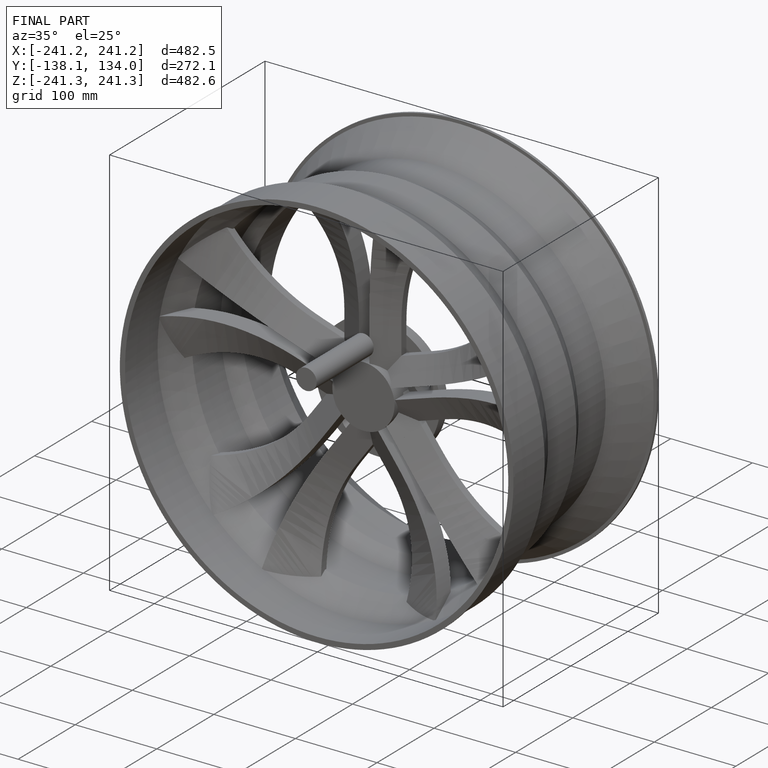
[diagram: finished part — iso view with bounding-box wireframe]
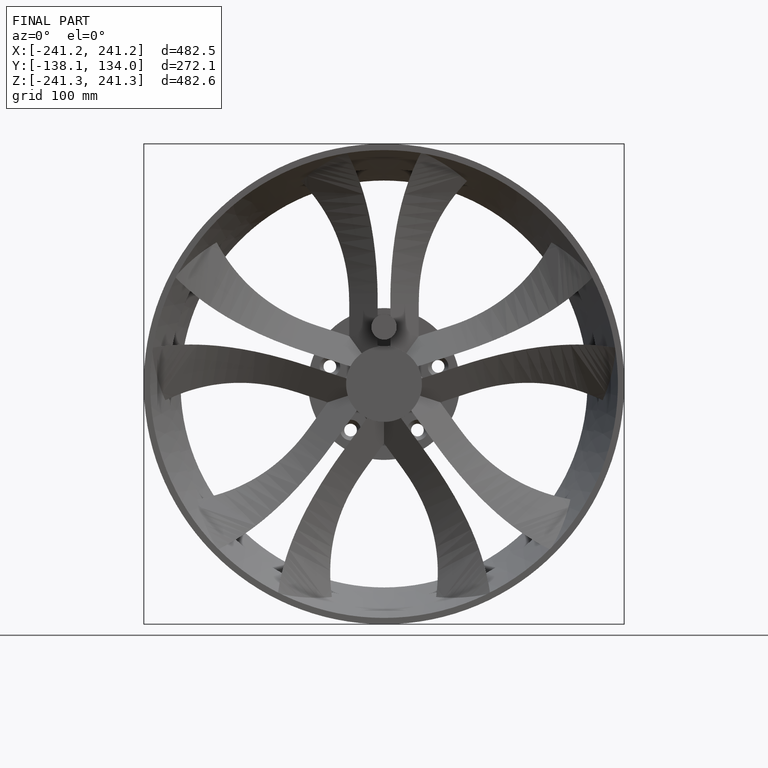
[diagram: finished part — front view with bounding-box wireframe]
